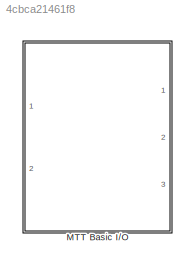
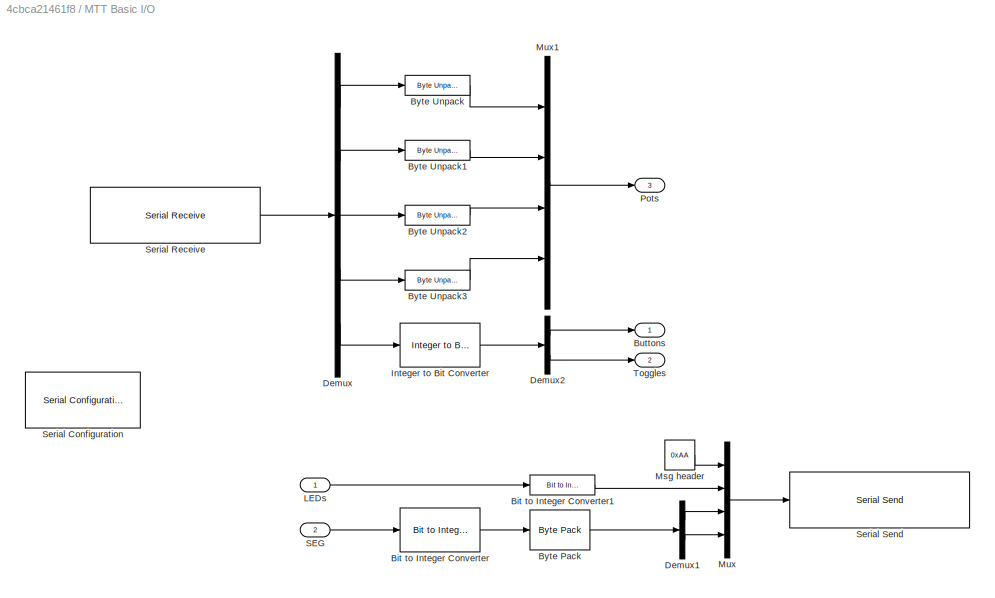
MODEL slx_4cbca21461f8
KIND library
CONFIG AbsTol = auto
CONFIG EnableMultiTasking = off
CONFIG FixedStep = auto
CONFIG MaxStep = auto
CONFIG MinStep = auto
CONFIG RelTol = 1e-3
CONFIG SampleTimeConstraint = Unconstrained
CONFIG SolverName = VariableStepAuto
CONFIG StartTime = 0.0
CONFIG StopTime = 10.0
BLOCK [SubSystem] MTT Basic I//O
  Ports = [2, 3]
  RequestExecContextInheritance = off
BLOCK [Reference] MTT Basic I//O/Bit to Integer Converter  REF=simulink/Logic and Bit
Operations/Bit to Integer
Converter
  Ports = [1, 1]
  SourceBlock = simulink/Logic and Bit\nOperations/Bit to Integer\nConverter
  SourceProductBaseCode = SL
  SourceType = Bit to Integer Converter
BLOCK [Reference] MTT Basic I//O/Bit to Integer Converter1  REF=simulink/Logic and Bit
Operations/Bit to Integer
Converter
  Ports = [1, 1]
  SourceBlock = simulink/Logic and Bit\nOperations/Bit to Integer\nConverter
  SourceProductBaseCode = SL
  SourceType = Bit to Integer Converter
BLOCK [Outport] MTT Basic I//O/Buttons
BLOCK [Reference] MTT Basic I//O/Byte Pack  REF=etargetslib/Byte Pack
  Ports = [1, 1]
  SourceBlock = etargetslib/Byte Pack
  SourceProductBaseCode = ME
  SourceType = Byte pack
BLOCK [Reference] MTT Basic I//O/Byte Unpack  REF=etargetslib/Byte Unpack
  Ports = [1, 1]
  SourceBlock = etargetslib/Byte Unpack
  SourceProductBaseCode = ME
  SourceType = Byte Unpack
BLOCK [Reference] MTT Basic I//O/Byte Unpack1  REF=etargetslib/Byte Unpack
  Ports = [1, 1]
  SourceBlock = etargetslib/Byte Unpack
  SourceProductBaseCode = ME
  SourceType = Byte Unpack
BLOCK [Reference] MTT Basic I//O/Byte Unpack2  REF=etargetslib/Byte Unpack
  Ports = [1, 1]
  SourceBlock = etargetslib/Byte Unpack
  SourceProductBaseCode = ME
  SourceType = Byte Unpack
BLOCK [Reference] MTT Basic I//O/Byte Unpack3  REF=etargetslib/Byte Unpack
  Ports = [1, 1]
  SourceBlock = etargetslib/Byte Unpack
  SourceProductBaseCode = ME
  SourceType = Byte Unpack
BLOCK [Demux] MTT Basic I//O/Demux
  Outputs = [2,2,2,2,1]
  Ports = [1, 5]
BLOCK [Demux] MTT Basic I//O/Demux1
  Outputs = 2
  Ports = [1, 2]
BLOCK [Demux] MTT Basic I//O/Demux2
  Outputs = 2
  Ports = [1, 2]
BLOCK [Reference] MTT Basic I//O/Integer to Bit Converter  REF=simulink/Logic and Bit
Operations/Integer to Bit
Converter
  Ports = [1, 1]
  SourceBlock = simulink/Logic and Bit\nOperations/Integer to Bit\nConverter
  SourceProductBaseCode = SL
  SourceType = Integer to Bit Converter
BLOCK [Inport] MTT Basic I//O/LEDs
  OutDataTypeStr = boolean
BLOCK [Constant] MTT Basic I//O/Msg header
  Value = 0xAA
BLOCK [Mux] MTT Basic I//O/Mux
  DisplayOption = bar
  Ports = [4, 1]
BLOCK [Mux] MTT Basic I//O/Mux1
  DisplayOption = bar
  Ports = [4, 1]
BLOCK [Outport] MTT Basic I//O/Pots
  OutDataTypeStr = uint16
  Port = 3
BLOCK [Inport] MTT Basic I//O/SEG
  OutDataTypeStr = boolean
  Port = 2
BLOCK [Reference] MTT Basic I//O/Serial Configuration  REF=instrumentseriallib/Serial Configuration
  Ports = []
  Priority = -200000
  SourceBlock = instrumentseriallib/Serial Configuration
  SourceProductBaseCode = OT,IC,MT
  SourceType = system.SerialConfiguration
BLOCK [Reference] MTT Basic I//O/Serial Receive  REF=instrumentseriallib/Serial Receive
  Ports = [0, 1]
  Priority = 1
  SourceBlock = instrumentseriallib/Serial Receive
  SourceProductBaseCode = OT,IC,MT
  SourceType = system.SerialReceive
BLOCK [Reference] MTT Basic I//O/Serial Send  REF=instrumentseriallib/Serial Send
  Ports = [1]
  Priority = 1
  SourceBlock = instrumentseriallib/Serial Send
  SourceProductBaseCode = OT,IC,MT
  SourceType = system.SerialSend
BLOCK [Outport] MTT Basic I//O/Toggles
  Port = 2
LINE MTT Basic I//O/Bit to Integer Converter1:1 -> MTT Basic I//O/Mux:2
LINE MTT Basic I//O/Bit to Integer Converter:1 -> MTT Basic I//O/Byte Pack:1
LINE MTT Basic I//O/Byte Pack:1 -> MTT Basic I//O/Demux1:1
LINE MTT Basic I//O/Byte Unpack1:1 -> MTT Basic I//O/Mux1:2
LINE MTT Basic I//O/Byte Unpack2:1 -> MTT Basic I//O/Mux1:3
LINE MTT Basic I//O/Byte Unpack3:1 -> MTT Basic I//O/Mux1:4
LINE MTT Basic I//O/Byte Unpack:1 -> MTT Basic I//O/Mux1:1
LINE MTT Basic I//O/Demux1:1 -> MTT Basic I//O/Mux:3
LINE MTT Basic I//O/Demux1:2 -> MTT Basic I//O/Mux:4
LINE MTT Basic I//O/Demux2:1 -> MTT Basic I//O/Buttons:1
LINE MTT Basic I//O/Demux2:2 -> MTT Basic I//O/Toggles:1
LINE MTT Basic I//O/Demux:1 -> MTT Basic I//O/Byte Unpack:1
LINE MTT Basic I//O/Demux:2 -> MTT Basic I//O/Byte Unpack1:1
LINE MTT Basic I//O/Demux:3 -> MTT Basic I//O/Byte Unpack2:1
LINE MTT Basic I//O/Demux:4 -> MTT Basic I//O/Byte Unpack3:1
LINE MTT Basic I//O/Demux:5 -> MTT Basic I//O/Integer to Bit Converter:1
LINE MTT Basic I//O/Integer to Bit Converter:1 -> MTT Basic I//O/Demux2:1
LINE MTT Basic I//O/LEDs:1 -> MTT Basic I//O/Bit to Integer Converter1:1
LINE MTT Basic I//O/Msg header:1 -> MTT Basic I//O/Mux:1
LINE MTT Basic I//O/Mux1:1 -> MTT Basic I//O/Pots:1
LINE MTT Basic I//O/Mux:1 -> MTT Basic I//O/Serial Send:1
LINE MTT Basic I//O/SEG:1 -> MTT Basic I//O/Bit to Integer Converter:1
LINE MTT Basic I//O/Serial Receive:1 -> MTT Basic I//O/Demux:1
